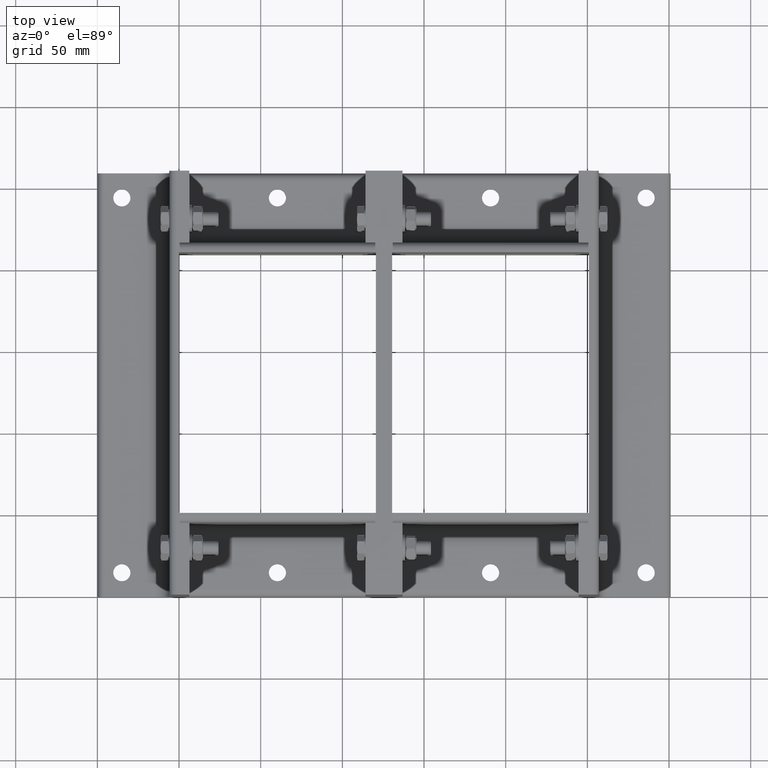
[diagram: clean part render]
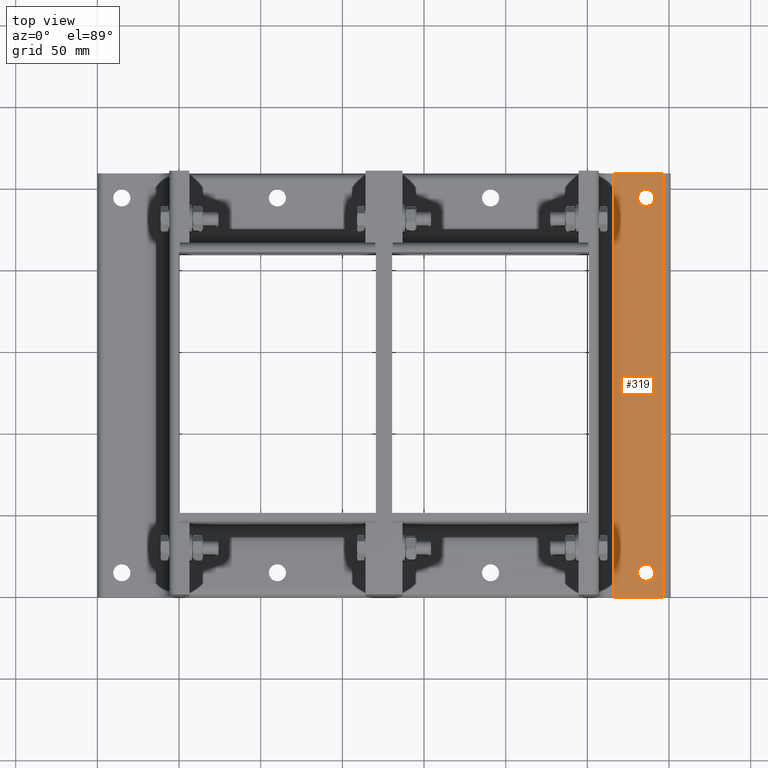
[diagram: same view with one face highlighted and labeled with its STEP entity id]
A machine part, top view. The second image highlights one B-rep face of the part: STEP entity #319.
In plain terms, the highlighted planar face has unit normal (0, -0, 1).
Its self-contained STEP definition (entity closure, byte-faithful):
#190=CARTESIAN_POINT('',(29.749999999999993,15.0,6.000000000000004));
#191=VERTEX_POINT('',#190);
#192=CARTESIAN_POINT('',(34.999999999999993,15.0,6.000000000000004));
#193=DIRECTION('',(0.0,0.0,-1.0));
#194=DIRECTION('',(1.0,0.0,0.0));
#195=AXIS2_PLACEMENT_3D('',#192,#193,#194);
#196=CIRCLE('',#195,5.25);
#197=EDGE_CURVE('',#191,#191,#196,.T.);
#218=CARTESIAN_POINT('',(29.75,244.50000000000003,6.000000000000004));
#219=VERTEX_POINT('',#218);
#220=CARTESIAN_POINT('',(35.0,244.50000000000003,6.000000000000004));
#221=DIRECTION('',(0.0,0.0,-1.0));
#222=DIRECTION('',(1.0,0.0,0.0));
#223=AXIS2_PLACEMENT_3D('',#220,#221,#222);
#224=CIRCLE('',#223,5.25);
#225=EDGE_CURVE('',#219,#219,#224,.T.);
#248=CARTESIAN_POINT('',(15.0,0.0,6.000000000000001));
#249=VERTEX_POINT('',#248);
#257=CARTESIAN_POINT('',(15.0,259.5,6.000000000000001));
#258=VERTEX_POINT('',#257);
#259=CARTESIAN_POINT('',(14.999999999999998,0.0,6.000000000000001));
#260=DIRECTION('',(0.0,1.0,0.0));
#261=VECTOR('',#260,259.5);
#262=LINE('',#259,#261);
#263=EDGE_CURVE('',#249,#258,#262,.T.);
#283=CARTESIAN_POINT('',(5.999999999999996,0.0,6.000000000000004));
#284=DIRECTION('',(0.0,0.0,1.0));
#285=DIRECTION('',(1.0,0.0,0.0));
#286=AXIS2_PLACEMENT_3D('',#283,#284,#285);
#287=PLANE('',#286);
#288=ORIENTED_EDGE('',*,*,#263,.F.);
#289=CARTESIAN_POINT('',(45.499999999999986,0.0,5.999999999999991));
#290=VERTEX_POINT('',#289);
#291=CARTESIAN_POINT('',(45.499999999999993,0.0,5.999999999999991));
#292=DIRECTION('',(-1.0,0.0,0.0));
#293=VECTOR('',#292,30.499999999999993);
#294=LINE('',#291,#293);
#295=EDGE_CURVE('',#290,#249,#294,.T.);
#296=ORIENTED_EDGE('',*,*,#295,.F.);
#297=CARTESIAN_POINT('',(45.499999999999986,259.5,5.999999999999991));
#298=VERTEX_POINT('',#297);
#299=CARTESIAN_POINT('',(45.499999999999986,259.5,5.999999999999991));
#300=DIRECTION('',(0.0,-1.0,0.0));
#301=VECTOR('',#300,259.5);
#302=LINE('',#299,#301);
#303=EDGE_CURVE('',#298,#290,#302,.T.);
#304=ORIENTED_EDGE('',*,*,#303,.F.);
#305=CARTESIAN_POINT('',(15.0,259.5,6.0));
#306=DIRECTION('',(1.0,0.0,0.0));
#307=VECTOR('',#306,30.499999999999993);
#308=LINE('',#305,#307);
#309=EDGE_CURVE('',#258,#298,#308,.T.);
#310=ORIENTED_EDGE('',*,*,#309,.F.);
#311=EDGE_LOOP('',(#288,#296,#304,#310));
#312=FACE_OUTER_BOUND('',#311,.T.);
#313=ORIENTED_EDGE('',*,*,#197,.T.);
#314=EDGE_LOOP('',(#313));
#315=FACE_BOUND('',#314,.T.);
#316=ORIENTED_EDGE('',*,*,#225,.T.);
#317=EDGE_LOOP('',(#316));
#318=FACE_BOUND('',#317,.T.);
#319=ADVANCED_FACE('',(#312,#315,#318),#287,.T.);